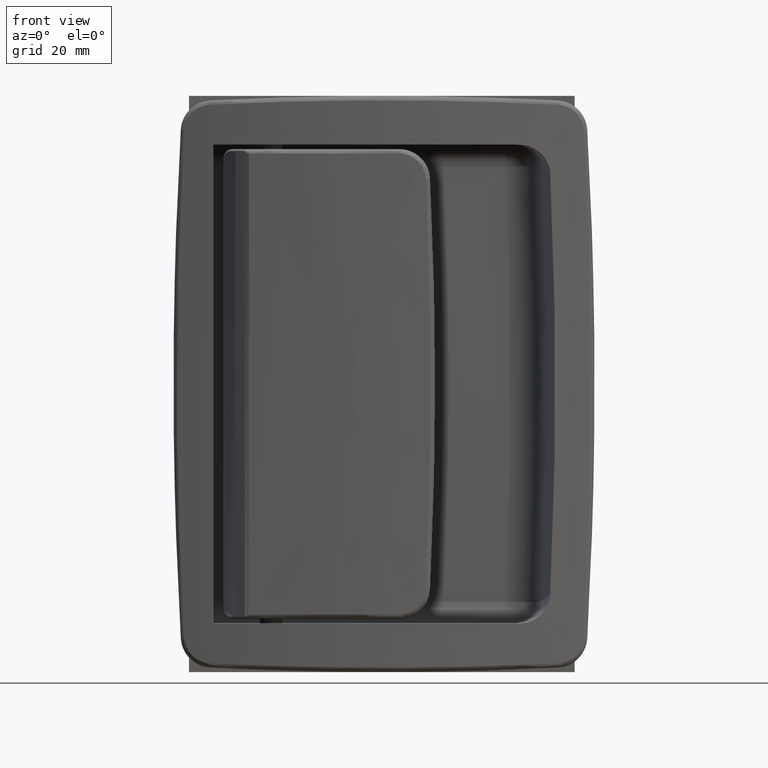
[diagram: clean part render]
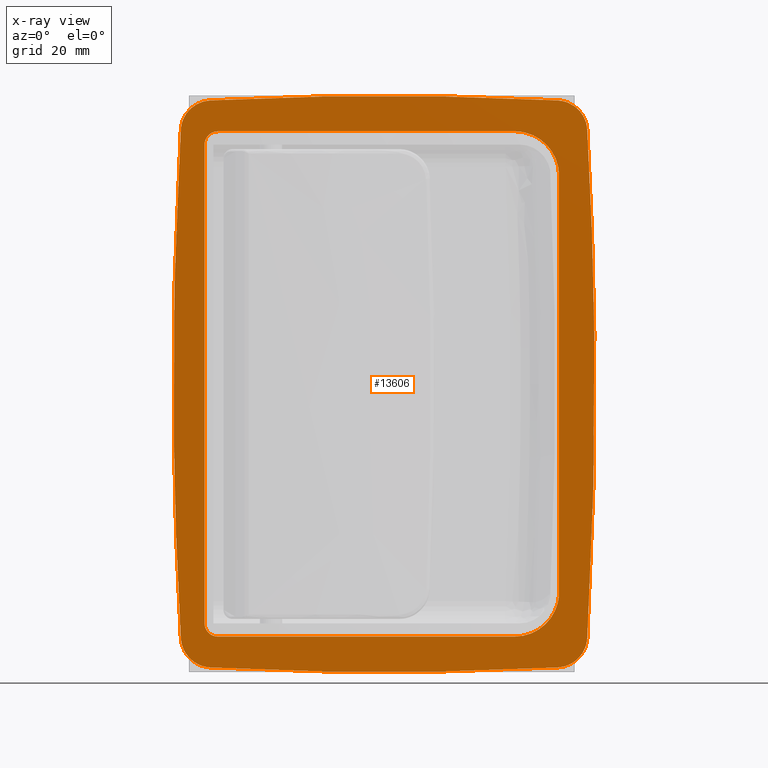
[diagram: x-ray — body ghosted, one internal face saturated and labeled with its STEP entity id]
A machine part, front view, then the same camera in x-ray: the body is ghosted and one INTERNAL B-rep face — a face not visible from any outside direction — is saturated and labeled: STEP entity #13606.
In plain terms, the highlighted face is a freeform B-spline surface patch.
Its self-contained STEP definition (entity closure, byte-faithful):
#13154=CARTESIAN_POINT('',(10.000000000196160,0.0,56.999955629393398));
#13155=VERTEX_POINT('',#13154);
#13156=CARTESIAN_POINT('',(77.000000000217895,0.0,56.999955629183397));
#13157=VERTEX_POINT('',#13156);
#13158=CARTESIAN_POINT('',(10.000000000196160,0.0,56.999955629393398));
#13159=CARTESIAN_POINT('',(77.000000000217895,0.0,56.999955629183397));
#13160=QUASI_UNIFORM_CURVE('',1,(#13158,#13159),.UNSPECIFIED.,.F.,.U.);
#13161=EDGE_CURVE('',#13155,#13157,#13160,.T.);
#13199=CARTESIAN_POINT('',(87.000000000186589,0.0,46.999955629183397));
#13200=VERTEX_POINT('',#13199);
#13201=CARTESIAN_POINT('',(87.000000000186589,0.0,46.999955629183397));
#13202=CARTESIAN_POINT('',(87.000202547448339,0.0,47.818084634222728));
#13203=CARTESIAN_POINT('',(86.798111979131122,0.0,49.454270679663829));
#13204=CARTESIAN_POINT('',(86.071378046900662,0.0,51.338482205596492));
#13205=CARTESIAN_POINT('',(85.113758432508448,0.0,52.913893892109407));
#13206=CARTESIAN_POINT('',(84.134624911649084,0.0,54.077560658970278));
#13207=CARTESIAN_POINT('',(82.659564799005167,0.0,55.318828956119432));
#13208=CARTESIAN_POINT('',(81.005507360866076,0.0,56.242519094028083));
#13209=CARTESIAN_POINT('',(79.004346033344177,0.0,56.862841435164590));
#13210=CARTESIAN_POINT('',(77.695403486297351,0.0,57.000057792930797));
#13211=CARTESIAN_POINT('',(77.000000000217895,0.0,56.999955629183397));
#13212=B_SPLINE_CURVE_WITH_KNOTS('',3,(#13201,#13202,#13203,#13204,#13205,#13206,#13207,#13208,#13209,#13210,#13211),.UNSPECIFIED.,.F.,.U.,(4,1,1,1,1,1,1,1,4),(0.000000117440889,2.454362959501070,4.908786745686770,6.013276101084378,7.976711633750346,9.449372312671537,11.781047989181200,13.621863813449959,15.708061828731029),.UNSPECIFIED.);
#13213=EDGE_CURVE('',#13200,#13157,#13212,.T.);
#13245=CARTESIAN_POINT('',(87.000000000186589,0.0,-47.000044370024803));
#13246=VERTEX_POINT('',#13245);
#13247=CARTESIAN_POINT('',(87.000000000186589,0.0,46.999955629183397));
#13248=CARTESIAN_POINT('',(87.000000000186589,0.0,-47.000044370024803));
#13249=QUASI_UNIFORM_CURVE('',1,(#13247,#13248),.UNSPECIFIED.,.F.,.U.);
#13250=EDGE_CURVE('',#13200,#13246,#13249,.T.);
#13282=CARTESIAN_POINT('',(77.000000000186603,0.0,-57.000044370024803));
#13283=VERTEX_POINT('',#13282);
#13284=CARTESIAN_POINT('',(77.000000000186603,0.0,-57.000044370024803));
#13285=CARTESIAN_POINT('',(77.818131377446392,0.0,-57.000230024293877));
#13286=CARTESIAN_POINT('',(79.208829375982447,0.0,-56.828371072273747));
#13287=CARTESIAN_POINT('',(81.344266371247627,0.0,-56.093889793182427));
#13288=CARTESIAN_POINT('',(83.071339541479020,0.0,-55.044248112765793));
#13289=CARTESIAN_POINT('',(84.617551671245593,0.0,-53.571963220932048));
#13290=CARTESIAN_POINT('',(85.740313722440945,0.0,-51.998394614660583));
#13291=CARTESIAN_POINT('',(86.723156586966525,0.0,-49.781318723724119));
#13292=CARTESIAN_POINT('',(87.000654845563702,0.0,-48.063694006712907));
#13293=CARTESIAN_POINT('',(87.000000000186589,0.0,-47.000044370024803));
#13294=B_SPLINE_CURVE_WITH_KNOTS('',3,(#13284,#13285,#13286,#13287,#13288,#13289,#13290,#13291,#13292,#13293),.UNSPECIFIED.,.F.,.U.,(4,1,1,1,1,1,1,4),(0.000000117442754,2.454362959507773,4.172455298066378,6.749561563222681,8.467610603336002,10.553850759935200,12.517374255218870,15.708061828756041),.UNSPECIFIED.);
#13295=EDGE_CURVE('',#13283,#13246,#13294,.T.);
#13327=CARTESIAN_POINT('',(10.000000000186620,0.0,-57.000044370024803));
#13328=VERTEX_POINT('',#13327);
#13329=CARTESIAN_POINT('',(77.000000000186603,0.0,-57.000044370024803));
#13330=CARTESIAN_POINT('',(10.000000000186620,0.0,-57.000044370024803));
#13331=QUASI_UNIFORM_CURVE('',1,(#13329,#13330),.UNSPECIFIED.,.F.,.U.);
#13332=EDGE_CURVE('',#13283,#13328,#13331,.T.);
#13364=CARTESIAN_POINT('',(7.000000000186620,0.0,-54.000044370024703));
#13365=VERTEX_POINT('',#13364);
#13366=CARTESIAN_POINT('',(7.000000000186620,0.0,-54.000044370024703));
#13367=CARTESIAN_POINT('',(6.999464671010587,0.0,-54.417369413238823));
#13368=CARTESIAN_POINT('',(7.150997687393558,0.0,-55.128723873450170));
#13369=CARTESIAN_POINT('',(7.642223385146670,0.0,-55.904210915643390));
#13370=CARTESIAN_POINT('',(8.213834400387698,0.0,-56.448410318128850));
#13371=CARTESIAN_POINT('',(8.969301793961531,0.0,-56.876520634230573));
#13372=CARTESIAN_POINT('',(9.631821046864314,0.0,-57.000342929505997));
#13373=CARTESIAN_POINT('',(10.000000000186620,0.0,-57.000044370024803));
#13374=B_SPLINE_CURVE_WITH_KNOTS('',3,(#13366,#13367,#13368,#13369,#13370,#13371,#13372,#13373),.UNSPECIFIED.,.F.,.U.,(4,1,1,1,1,4),(0.000000209626553,1.251763977797114,2.135403990291206,2.724383930550045,3.608017489491105,4.712507233014129),.UNSPECIFIED.);
#13375=EDGE_CURVE('',#13365,#13328,#13374,.T.);
#13404=CARTESIAN_POINT('',(7.000000000186620,0.0,53.999955629393597));
#13405=VERTEX_POINT('',#13404);
#13406=CARTESIAN_POINT('',(7.000000000186620,0.0,-54.000044370024703));
#13407=CARTESIAN_POINT('',(7.000000000186620,0.0,53.999955629393597));
#13408=QUASI_UNIFORM_CURVE('',1,(#13406,#13407),.UNSPECIFIED.,.F.,.U.);
#13409=EDGE_CURVE('',#13365,#13405,#13408,.T.);
#13441=CARTESIAN_POINT('',(10.000000000196160,0.0,56.999955629393398));
#13442=CARTESIAN_POINT('',(9.631775264481256,0.0,57.000298336456311));
#13443=CARTESIAN_POINT('',(9.165700974298776,0.0,56.913031026282979));
#13444=CARTESIAN_POINT('',(8.469234322301274,0.0,56.604327733278332));
#13445=CARTESIAN_POINT('',(7.860580513018296,0.0,56.175854419862290));
#13446=CARTESIAN_POINT('',(7.326437017989340,0.0,55.455613953422272));
#13447=CARTESIAN_POINT('',(7.051728640090575,0.0,54.687151585091172));
#13448=CARTESIAN_POINT('',(6.999970291933591,0.0,54.220840854718617));
#13449=CARTESIAN_POINT('',(7.000000000186620,0.0,53.999955629393597));
#13450=B_SPLINE_CURVE_WITH_KNOTS('',3,(#13441,#13442,#13443,#13444,#13445,#13446,#13447,#13448,#13449),.UNSPECIFIED.,.F.,.U.,(4,1,1,1,1,1,4),(0.000000209620336,1.104489953147213,1.399025936105439,2.282648068007339,3.313481506537025,4.049836708143498,4.712507233021120),.UNSPECIFIED.);
#13451=EDGE_CURVE('',#13155,#13405,#13450,.T.);
#13470=CARTESIAN_POINT('',(-4.745249815871285,0.0,71.493499747575697));
#13471=CARTESIAN_POINT('',(99.745252363971005,0.0,71.493499747575697));
#13472=CARTESIAN_POINT('',(-4.745249815871285,0.0,-71.493503234596346));
#13473=CARTESIAN_POINT('',(99.745252363971005,0.0,-71.493503234596346));
#13474=B_SPLINE_SURFACE_WITH_KNOTS('',1,1,((#13470,#13472),(#13471,#13473)),.UNSPECIFIED.,.F.,.F.,.U.,(2,2),(2,2),(0.0,104.490502179842300),(0.0,142.987002982171990),.UNSPECIFIED.);
#13475=CARTESIAN_POINT('',(93.352146958775407,0.0,57.384585585241012));
#13476=VERTEX_POINT('',#13475);
#13477=CARTESIAN_POINT('',(86.729826981912510,0.0,63.973311056002707));
#13478=VERTEX_POINT('',#13477);
#13479=CARTESIAN_POINT('',(93.352146958775407,0.0,57.384585585241012));
#13480=CARTESIAN_POINT('',(93.321695652243108,0.0,57.916398995351052));
#13481=CARTESIAN_POINT('',(93.175045199707100,0.0,58.761596522955813));
#13482=CARTESIAN_POINT('',(92.702870542006920,0.0,60.038627591838157));
#13483=CARTESIAN_POINT('',(92.051554463979571,0.0,61.147402726377258));
#13484=CARTESIAN_POINT('',(90.991050285177607,0.0,62.317040922018343));
#13485=CARTESIAN_POINT('',(89.688276135530401,0.0,63.219731978614178));
#13486=CARTESIAN_POINT('',(88.187343332829442,0.0,63.795213219938127));
#13487=CARTESIAN_POINT('',(87.208582439374183,0.0,63.948301114596838));
#13488=CARTESIAN_POINT('',(86.729826981912510,0.0,63.973311056002707));
#13489=B_SPLINE_CURVE_WITH_KNOTS('',3,(#13479,#13480,#13481,#13482,#13483,#13484,#13485,#13486,#13487,#13488),.UNSPECIFIED.,.F.,.U.,(4,1,1,1,1,1,1,4),(0.000000141908851,1.598028056926561,2.556852657719469,4.074995086601747,5.433260687285694,7.271036544744964,8.789180421854146,10.227404701036040),.UNSPECIFIED.);
#13490=EDGE_CURVE('',#13476,#13478,#13489,.T.);
#13491=ORIENTED_EDGE('',*,*,#13490,.T.);
#13492=CARTESIAN_POINT('',(8.270173018127320,0.0,63.973311056194213));
#13493=VERTEX_POINT('',#13492);
#13494=CARTESIAN_POINT('',(86.729826981912510,0.0,63.973311056002707));
#13495=CARTESIAN_POINT('',(47.500000000024464,0.0,66.028096323224375));
#13496=CARTESIAN_POINT('',(8.270173018127320,0.0,63.973311056194213));
#13504=(BOUNDED_CURVE()B_SPLINE_CURVE(2,(#13494,#13495,#13496),.UNSPECIFIED.,.F.,.U.)CURVE()GEOMETRIC_REPRESENTATION_ITEM()QUASI_UNIFORM_CURVE()RATIONAL_B_SPLINE_CURVE((1.0,0.998631081408697,1.0))REPRESENTATION_ITEM(''));
#13505=EDGE_CURVE('',#13478,#13493,#13504,.T.);
#13506=ORIENTED_EDGE('',*,*,#13505,.T.);
#13507=CARTESIAN_POINT('',(1.647853041229955,0.0,57.384585585430813));
#13508=VERTEX_POINT('',#13507);
#13509=CARTESIAN_POINT('',(8.270173018127320,0.0,63.973311056194213));
#13510=CARTESIAN_POINT('',(7.738211282759355,0.0,63.945563929378963));
#13511=CARTESIAN_POINT('',(6.865838708017257,0.0,63.798777541072347));
#13512=CARTESIAN_POINT('',(5.663741236325536,0.0,63.353402039540804));
#13513=CARTESIAN_POINT('',(4.756251967066242,0.0,62.840256016033507));
#13514=CARTESIAN_POINT('',(3.725530994528290,0.0,62.035530936821431));
#13515=CARTESIAN_POINT('',(2.793446503982255,0.0,60.959288248193310));
#13516=CARTESIAN_POINT('',(1.949663637544652,0.0,59.314505588767553));
#13517=CARTESIAN_POINT('',(1.688728623062336,0.0,58.102578329494023));
#13518=CARTESIAN_POINT('',(1.647853041229955,0.0,57.384585585430813));
#13519=B_SPLINE_CURVE_WITH_KNOTS('',3,(#13509,#13510,#13511,#13512,#13513,#13514,#13515,#13516,#13517,#13518),.UNSPECIFIED.,.F.,.U.,(4,1,1,1,1,1,1,4),(0.000000141948922,1.598028056965998,2.636754436281156,3.835281738987465,4.714216502233998,6.551926725433593,8.070070602557030,10.227404701070220),.UNSPECIFIED.);
#13520=EDGE_CURVE('',#13493,#13508,#13519,.T.);
#13521=ORIENTED_EDGE('',*,*,#13520,.T.);
#13522=CARTESIAN_POINT('',(1.647853041230520,0.0,-57.384585585463697));
#13523=VERTEX_POINT('',#13522);
#13524=CARTESIAN_POINT('',(1.647853041229955,0.0,57.384585585430813));
#13525=CARTESIAN_POINT('',(-1.650572942873296,0.0,-1.651029E-011));
#13526=CARTESIAN_POINT('',(1.647853041230520,0.0,-57.384585585463697));
#13534=(BOUNDED_CURVE()B_SPLINE_CURVE(2,(#13524,#13525,#13526),.UNSPECIFIED.,.F.,.U.)CURVE()GEOMETRIC_REPRESENTATION_ITEM()QUASI_UNIFORM_CURVE()RATIONAL_B_SPLINE_CURVE((1.0,0.998352146958771,1.0))REPRESENTATION_ITEM(''));
#13535=EDGE_CURVE('',#13508,#13523,#13534,.T.);
#13536=ORIENTED_EDGE('',*,*,#13535,.T.);
#13537=CARTESIAN_POINT('',(8.270173018109309,0.0,-63.973311056229797));
#13538=VERTEX_POINT('',#13537);
#13539=CARTESIAN_POINT('',(1.647853041230520,0.0,-57.384585585463697));
#13540=CARTESIAN_POINT('',(1.691740176732110,0.0,-58.155781323400873));
#13541=CARTESIAN_POINT('',(1.967024656154487,0.0,-59.366789521824479));
#13542=CARTESIAN_POINT('',(2.791258842150250,0.0,-60.928831413547513));
#13543=CARTESIAN_POINT('',(3.788818563137754,0.0,-62.121482142746942));
#13544=CARTESIAN_POINT('',(4.972114044897192,0.0,-63.002725418716579));
#13545=CARTESIAN_POINT('',(6.470651978746803,0.0,-63.709001264786401));
#13546=CARTESIAN_POINT('',(7.551978552418192,0.0,-63.936037119903837));
#13547=CARTESIAN_POINT('',(8.270173018109309,0.0,-63.973311056229797));
#13548=B_SPLINE_CURVE_WITH_KNOTS('',3,(#13539,#13540,#13541,#13542,#13543,#13544,#13545,#13546,#13547),.UNSPECIFIED.,.F.,.U.,(4,1,1,1,1,1,4),(0.000000141904268,2.317142633364259,3.675489229730216,5.273468158891441,6.951434913914950,8.070070602535385,10.227404701054571),.UNSPECIFIED.);
#13549=EDGE_CURVE('',#13523,#13538,#13548,.T.);
#13550=ORIENTED_EDGE('',*,*,#13549,.T.);
#13551=CARTESIAN_POINT('',(86.729826981894206,0.0,-63.973311056265111));
#13552=VERTEX_POINT('',#13551);
#13553=CARTESIAN_POINT('',(8.270173018109309,0.0,-63.973311056229797));
#13554=CARTESIAN_POINT('',(47.500000000000242,0.0,-66.028096323373248));
#13555=CARTESIAN_POINT('',(86.729826981894206,0.0,-63.973311056265111));
#13563=(BOUNDED_CURVE()B_SPLINE_CURVE(2,(#13553,#13554,#13555),.UNSPECIFIED.,.F.,.U.)CURVE()GEOMETRIC_REPRESENTATION_ITEM()QUASI_UNIFORM_CURVE()RATIONAL_B_SPLINE_CURVE((1.0,0.998631081408697,1.0))REPRESENTATION_ITEM(''));
#13564=EDGE_CURVE('',#13538,#13552,#13563,.T.);
#13565=ORIENTED_EDGE('',*,*,#13564,.T.);
#13566=CARTESIAN_POINT('',(93.352146958777709,0.0,-57.384585585501512));
#13567=VERTEX_POINT('',#13566);
#13568=CARTESIAN_POINT('',(86.729826981894206,0.0,-63.973311056265111));
#13569=CARTESIAN_POINT('',(87.394792625357141,0.0,-63.938735878735429));
#13570=CARTESIAN_POINT('',(88.556123846119689,0.0,-63.708928153304669));
#13571=CARTESIAN_POINT('',(89.933697786239335,0.0,-63.049956102445897));
#13572=CARTESIAN_POINT('',(90.992055829815513,0.0,-62.280246037920691));
#13573=CARTESIAN_POINT('',(91.924322476427349,0.0,-61.320541919500393));
#13574=CARTESIAN_POINT('',(92.621640203594453,0.0,-60.207362191762222));
#13575=CARTESIAN_POINT('',(93.152354871386734,0.0,-58.866973614343081));
#13576=CARTESIAN_POINT('',(93.318678803233681,0.0,-57.969582761998630));
#13577=CARTESIAN_POINT('',(93.352146958777709,0.0,-57.384585585501512));
#13578=B_SPLINE_CURVE_WITH_KNOTS('',3,(#13568,#13569,#13570,#13571,#13572,#13573,#13574,#13575,#13576,#13577),.UNSPECIFIED.,.F.,.U.,(4,1,1,1,1,1,1,4),(0.000000141938603,1.997539314411565,3.515691478364490,4.554431659601784,5.912696501741420,7.510747685092381,8.469587468921295,10.227404701057040),.UNSPECIFIED.);
#13579=EDGE_CURVE('',#13552,#13567,#13578,.T.);
#13580=ORIENTED_EDGE('',*,*,#13579,.T.);
#13581=CARTESIAN_POINT('',(93.352146958777709,0.0,-57.384585585501512));
#13582=CARTESIAN_POINT('',(96.650572942868834,0.0,-1.300847E-010));
#13583=CARTESIAN_POINT('',(93.352146958775407,0.0,57.384585585241012));
#13591=(BOUNDED_CURVE()B_SPLINE_CURVE(2,(#13581,#13582,#13583),.UNSPECIFIED.,.F.,.U.)CURVE()GEOMETRIC_REPRESENTATION_ITEM()QUASI_UNIFORM_CURVE()RATIONAL_B_SPLINE_CURVE((1.0,0.998352146958775,1.0))REPRESENTATION_ITEM(''));
#13592=EDGE_CURVE('',#13567,#13476,#13591,.T.);
#13593=ORIENTED_EDGE('',*,*,#13592,.T.);
#13594=EDGE_LOOP('',(#13491,#13506,#13521,#13536,#13550,#13565,#13580,#13593));
#13595=FACE_OUTER_BOUND('',#13594,.T.);
#13596=ORIENTED_EDGE('',*,*,#13451,.F.);
#13597=ORIENTED_EDGE('',*,*,#13161,.T.);
#13598=ORIENTED_EDGE('',*,*,#13213,.F.);
#13599=ORIENTED_EDGE('',*,*,#13250,.T.);
#13600=ORIENTED_EDGE('',*,*,#13295,.F.);
#13601=ORIENTED_EDGE('',*,*,#13332,.T.);
#13602=ORIENTED_EDGE('',*,*,#13375,.F.);
#13603=ORIENTED_EDGE('',*,*,#13409,.T.);
#13604=EDGE_LOOP('',(#13596,#13597,#13598,#13599,#13600,#13601,#13602,#13603));
#13605=FACE_BOUND('',#13604,.T.);
#13606=ADVANCED_FACE('',(#13595,#13605),#13474,.F.);